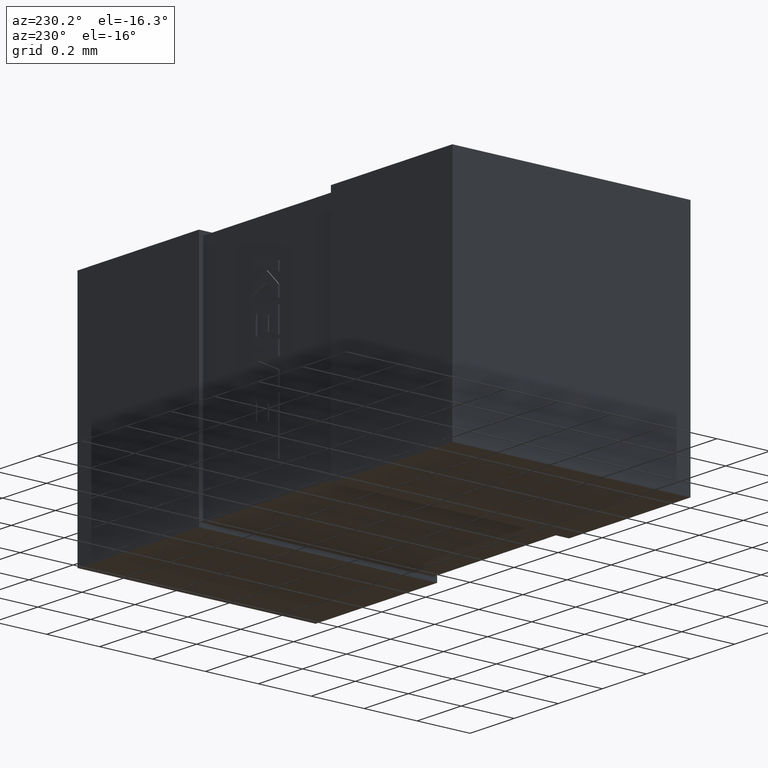
[diagram: clean part render]
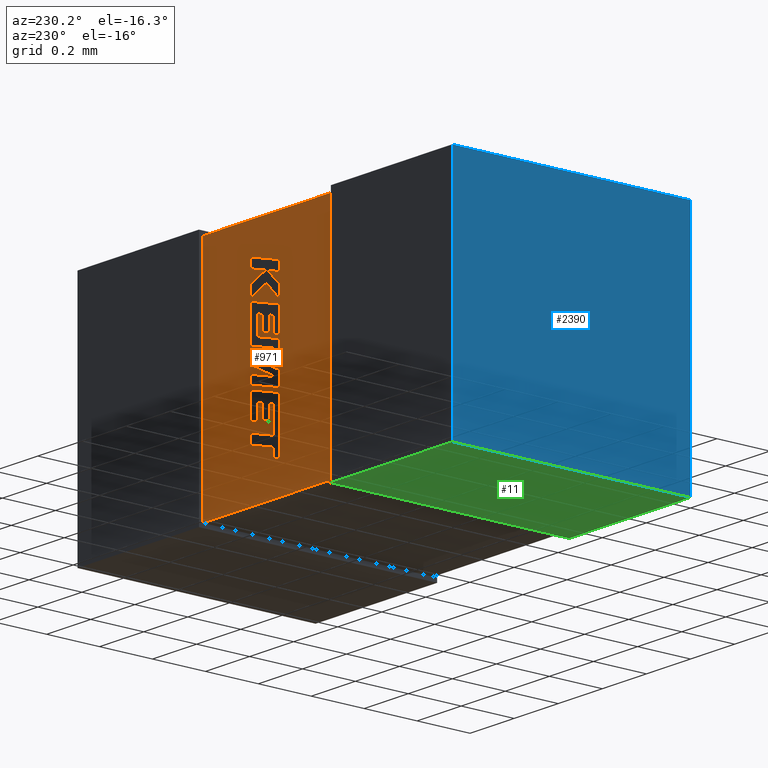
[diagram: same view with three faces highlighted in distinct colors, each labeled with its STEP entity id]
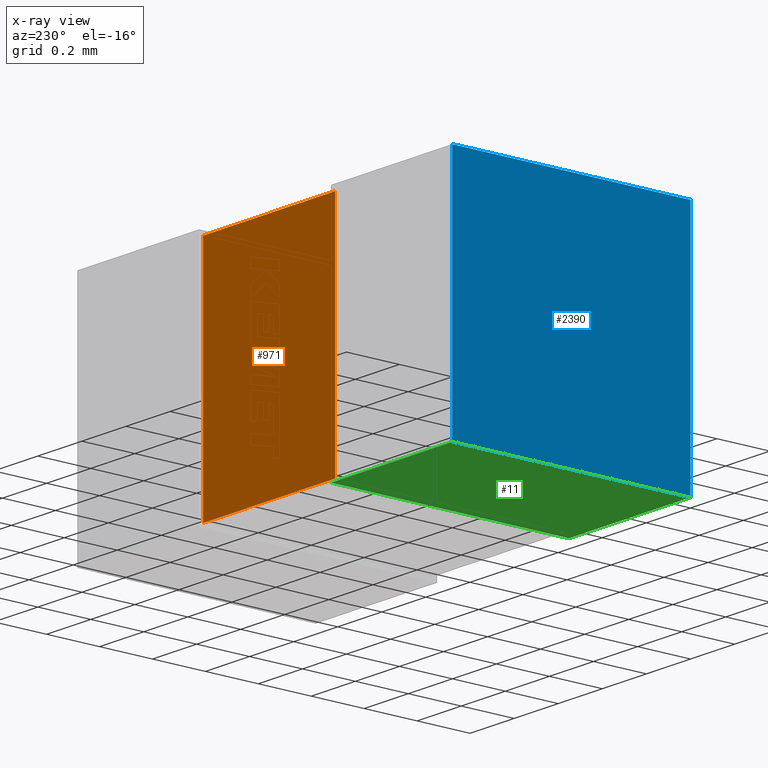
[diagram: x-ray of the same camera — body ghosted, the three highlighted faces saturated]
A machine part, auxiliary view with three faces highlighted in distinct colors.
The next image is the same camera in x-ray (body ghosted, the three faces saturated) — at least one of them is partly hidden behind the body in this view.
Their STEP definitions:

[orange] entity #971 — the highlighted planar face has unit normal (0, -1, 0).
#123 = CARTESIAN_POINT ( 'NONE',  ( 0.5500000000000002700, 0.8844830999999999700, -0.9000000000000002400 ) ) ;
#139 = EDGE_CURVE ( 'NONE', #170, #1291, #2241, .T. ) ;
#170 = VERTEX_POINT ( 'NONE', #1509 ) ;
#248 = LINE ( 'NONE', #783, #2033 ) ;
#392 = DIRECTION ( 'NONE',  ( -0.0000000000000000000, -0.0000000000000000000, 1.000000000000000000 ) ) ;
#425 = FACE_OUTER_BOUND ( 'NONE', #1767, .T. ) ;
#461 = CARTESIAN_POINT ( 'NONE',  ( 1.149000000000000000, 0.8844830999999999700, -0.8844831000000001900 ) ) ;
#529 = DIRECTION ( 'NONE',  ( 1.000000000000000000, 0.0000000000000000000, 0.0000000000000000000 ) ) ;
#656 = DIRECTION ( 'NONE',  ( -0.0000000000000000000, -0.0000000000000000000, -1.000000000000000000 ) ) ;
#679 = VECTOR ( 'NONE', #392, 1000.000000000000000 ) ;
#721 = LINE ( 'NONE', #461, #1835 ) ;
#764 = CARTESIAN_POINT ( 'NONE',  ( 0.5510000000000064800, 0.8844831000000000800, -0.01551689999999990600 ) ) ;
#783 = CARTESIAN_POINT ( 'NONE',  ( 0.5500000000000001600, 0.8844830999999999700, -0.01551690000000001400 ) ) ;
#971 = ADVANCED_FACE ( 'NONE', ( #425 ), #1269, .F. ) ;
#1051 = ORIENTED_EDGE ( 'NONE', *, *, #2040, .T. ) ;
#1113 = ORIENTED_EDGE ( 'NONE', *, *, #139, .F. ) ;
#1264 = AXIS2_PLACEMENT_3D ( 'NONE', #123, #1478, #1851 ) ;
#1269 = PLANE ( 'NONE',  #1264 ) ;
#1291 = VERTEX_POINT ( 'NONE', #1840 ) ;
#1365 = DIRECTION ( 'NONE',  ( 1.000000000000000000, 0.0000000000000000000, 0.0000000000000000000 ) ) ;
#1388 = ORIENTED_EDGE ( 'NONE', *, *, #2324, .T. ) ;
#1478 = DIRECTION ( 'NONE',  ( 0.0000000000000000000, -1.000000000000000000, 0.0000000000000000000 ) ) ;
#1509 = CARTESIAN_POINT ( 'NONE',  ( 0.5510000000000064800, 0.8844831000000000800, -0.8844830999999997400 ) ) ;
#1525 = EDGE_CURVE ( 'NONE', #2047, #1291, #721, .T. ) ;
#1720 = VECTOR ( 'NONE', #529, 1000.000000000000000 ) ;
#1767 = EDGE_LOOP ( 'NONE', ( #1983, #1113, #1051, #1388 ) ) ;
#1835 = VECTOR ( 'NONE', #656, 1000.000000000000000 ) ;
#1840 = CARTESIAN_POINT ( 'NONE',  ( 1.149000000000000000, 0.8844830999999999700, -0.8844831000000001900 ) ) ;
#1851 = DIRECTION ( 'NONE',  ( 0.0000000000000000000, -0.0000000000000000000, -1.000000000000000000 ) ) ;
#1876 = LINE ( 'NONE', #2375, #679 ) ;
#1983 = ORIENTED_EDGE ( 'NONE', *, *, #1525, .T. ) ;
#2033 = VECTOR ( 'NONE', #1365, 1000.000000000000000 ) ;
#2040 = EDGE_CURVE ( 'NONE', #170, #2269, #1876, .T. ) ;
#2047 = VERTEX_POINT ( 'NONE', #2441 ) ;
#2089 = CARTESIAN_POINT ( 'NONE',  ( 0.5500000000000001600, 0.8844830999999999700, -0.8844831000000001900 ) ) ;
#2241 = LINE ( 'NONE', #2089, #1720 ) ;
#2269 = VERTEX_POINT ( 'NONE', #764 ) ;
#2324 = EDGE_CURVE ( 'NONE', #2269, #2047, #248, .T. ) ;
#2375 = CARTESIAN_POINT ( 'NONE',  ( 0.5510000000000064800, 0.8844831000000000800, -0.01551689999999990600 ) ) ;
#2441 = CARTESIAN_POINT ( 'NONE',  ( 1.149000000000000000, 0.8844830999999999700, -0.01551690000000001400 ) ) ;

[blue] entity #2390 — the highlighted planar face has unit normal (1, -0, 0).
#204 = VERTEX_POINT ( 'NONE', #521 ) ;
#265 = DIRECTION ( 'NONE',  ( -0.0000000000000000000, -0.0000000000000000000, 1.000000000000000000 ) ) ;
#368 = EDGE_LOOP ( 'NONE', ( #905, #1192, #1980, #1946 ) ) ;
#457 = LINE ( 'NONE', #2191, #2451 ) ;
#521 = CARTESIAN_POINT ( 'NONE',  ( 0.0000000000000000000, 0.9000000000000000200, -0.9000000000000000200 ) ) ;
#600 = DIRECTION ( 'NONE',  ( -0.0000000000000000000, -0.0000000000000000000, 1.000000000000000000 ) ) ;
#610 = CARTESIAN_POINT ( 'NONE',  ( 0.0000000000000000000, 0.9000000000000000200, 0.0000000000000000000 ) ) ;
#804 = DIRECTION ( 'NONE',  ( 1.000000000000000000, -0.0000000000000000000, 0.0000000000000000000 ) ) ;
#809 = CARTESIAN_POINT ( 'NONE',  ( 0.0000000000000000000, 0.0000000000000000000, -0.9000000000000000200 ) ) ;
#905 = ORIENTED_EDGE ( 'NONE', *, *, #2202, .T. ) ;
#1033 = LINE ( 'NONE', #1065, #1267 ) ;
#1039 = CARTESIAN_POINT ( 'NONE',  ( 0.0000000000000000000, 0.9000000000000000200, 0.0000000000000000000 ) ) ;
#1041 = EDGE_CURVE ( 'NONE', #204, #2039, #1033, .T. ) ;
#1065 = CARTESIAN_POINT ( 'NONE',  ( 0.0000000000000000000, 0.9000000000000000200, -0.9000000000000000200 ) ) ;
#1141 = EDGE_CURVE ( 'NONE', #2010, #1438, #457, .T. ) ;
#1158 = CARTESIAN_POINT ( 'NONE',  ( 0.0000000000000000000, 0.0000000000000000000, 0.0000000000000000000 ) ) ;
#1192 = ORIENTED_EDGE ( 'NONE', *, *, #1141, .F. ) ;
#1203 = DIRECTION ( 'NONE',  ( -0.0000000000000000000, -1.000000000000000000, -0.0000000000000000000 ) ) ;
#1267 = VECTOR ( 'NONE', #1203, 1000.000000000000000 ) ;
#1392 = DIRECTION ( 'NONE',  ( 0.0000000000000000000, 0.0000000000000000000, -1.000000000000000000 ) ) ;
#1396 = PLANE ( 'NONE',  #1781 ) ;
#1431 = EDGE_CURVE ( 'NONE', #204, #2010, #2166, .T. ) ;
#1438 = VERTEX_POINT ( 'NONE', #1985 ) ;
#1490 = VECTOR ( 'NONE', #600, 1000.000000000000000 ) ;
#1545 = CARTESIAN_POINT ( 'NONE',  ( 0.0000000000000000000, 0.9000000000000000200, 0.0000000000000000000 ) ) ;
#1746 = VECTOR ( 'NONE', #265, 1000.000000000000000 ) ;
#1781 = AXIS2_PLACEMENT_3D ( 'NONE', #610, #804, #1392 ) ;
#1946 = ORIENTED_EDGE ( 'NONE', *, *, #1041, .T. ) ;
#1980 = ORIENTED_EDGE ( 'NONE', *, *, #1431, .F. ) ;
#1985 = CARTESIAN_POINT ( 'NONE',  ( 0.0000000000000000000, 0.0000000000000000000, 0.0000000000000000000 ) ) ;
#1999 = LINE ( 'NONE', #1158, #1490 ) ;
#2010 = VERTEX_POINT ( 'NONE', #1545 ) ;
#2039 = VERTEX_POINT ( 'NONE', #809 ) ;
#2148 = FACE_OUTER_BOUND ( 'NONE', #368, .T. ) ;
#2166 = LINE ( 'NONE', #1039, #1746 ) ;
#2191 = CARTESIAN_POINT ( 'NONE',  ( 0.0000000000000000000, 0.9000000000000000200, 0.0000000000000000000 ) ) ;
#2202 = EDGE_CURVE ( 'NONE', #2039, #1438, #1999, .T. ) ;
#2389 = DIRECTION ( 'NONE',  ( -0.0000000000000000000, -1.000000000000000000, -0.0000000000000000000 ) ) ;
#2390 = ADVANCED_FACE ( 'NONE', ( #2148 ), #1396, .F. ) ;
#2451 = VECTOR ( 'NONE', #2389, 1000.000000000000000 ) ;

[green] entity #11 — the highlighted planar face has unit normal (0, -0, 1).
#11 = ADVANCED_FACE ( 'NONE', ( #826 ), #312, .F. ) ;
#29 = VECTOR ( 'NONE', #296, 1000.000000000000000 ) ;
#36 = VECTOR ( 'NONE', #1997, 1000.000000000000000 ) ;
#109 = CARTESIAN_POINT ( 'NONE',  ( 0.5510000000000064800, 3.670258186266575500E-015, -0.9000000000000003600 ) ) ;
#141 = ORIENTED_EDGE ( 'NONE', *, *, #1041, .F. ) ;
#152 = DIRECTION ( 'NONE',  ( 1.000000000000000000, 0.0000000000000000000, -1.275531967630005200E-016 ) ) ;
#204 = VERTEX_POINT ( 'NONE', #521 ) ;
#214 = EDGE_CURVE ( 'NONE', #957, #739, #1215, .T. ) ;
#296 = DIRECTION ( 'NONE',  ( -1.000000000000000000, -0.0000000000000000000, 1.275531967630005200E-016 ) ) ;
#312 = PLANE ( 'NONE',  #1796 ) ;
#314 = DIRECTION ( 'NONE',  ( -0.0000000000000000000, 1.000000000000000000, 2.409338161078908500E-016 ) ) ;
#391 = LINE ( 'NONE', #1800, #36 ) ;
#508 = CARTESIAN_POINT ( 'NONE',  ( 0.0000000000000000000, 0.0000000000000000000, -0.9000000000000000200 ) ) ;
#521 = CARTESIAN_POINT ( 'NONE',  ( 0.0000000000000000000, 0.9000000000000000200, -0.9000000000000000200 ) ) ;
#544 = LINE ( 'NONE', #508, #29 ) ;
#705 = VECTOR ( 'NONE', #314, 1000.000000000000000 ) ;
#726 = CARTESIAN_POINT ( 'NONE',  ( 0.5510000000000064800, 0.9000000000000001300, -0.9000000000000002400 ) ) ;
#739 = VERTEX_POINT ( 'NONE', #1780 ) ;
#809 = CARTESIAN_POINT ( 'NONE',  ( 0.0000000000000000000, 0.0000000000000000000, -0.9000000000000000200 ) ) ;
#826 = FACE_OUTER_BOUND ( 'NONE', #904, .T. ) ;
#865 = EDGE_CURVE ( 'NONE', #739, #204, #391, .T. ) ;
#904 = EDGE_LOOP ( 'NONE', ( #1107, #1526, #1321, #141 ) ) ;
#957 = VERTEX_POINT ( 'NONE', #109 ) ;
#1033 = LINE ( 'NONE', #1065, #1267 ) ;
#1041 = EDGE_CURVE ( 'NONE', #204, #2039, #1033, .T. ) ;
#1065 = CARTESIAN_POINT ( 'NONE',  ( 0.0000000000000000000, 0.9000000000000000200, -0.9000000000000000200 ) ) ;
#1107 = ORIENTED_EDGE ( 'NONE', *, *, #865, .F. ) ;
#1203 = DIRECTION ( 'NONE',  ( -0.0000000000000000000, -1.000000000000000000, -0.0000000000000000000 ) ) ;
#1215 = LINE ( 'NONE', #726, #705 ) ;
#1267 = VECTOR ( 'NONE', #1203, 1000.000000000000000 ) ;
#1273 = CARTESIAN_POINT ( 'NONE',  ( 0.0000000000000000000, 0.9000000000000000200, -0.9000000000000000200 ) ) ;
#1321 = ORIENTED_EDGE ( 'NONE', *, *, #1861, .T. ) ;
#1497 = DIRECTION ( 'NONE',  ( 1.275531967630005200E-016, -0.0000000000000000000, 1.000000000000000000 ) ) ;
#1526 = ORIENTED_EDGE ( 'NONE', *, *, #214, .F. ) ;
#1780 = CARTESIAN_POINT ( 'NONE',  ( 0.5510000000000064800, 0.9000000000000001300, -0.9000000000000002400 ) ) ;
#1796 = AXIS2_PLACEMENT_3D ( 'NONE', #1273, #1497, #152 ) ;
#1800 = CARTESIAN_POINT ( 'NONE',  ( 0.0000000000000000000, 0.9000000000000000200, -0.9000000000000000200 ) ) ;
#1861 = EDGE_CURVE ( 'NONE', #957, #2039, #544, .T. ) ;
#1997 = DIRECTION ( 'NONE',  ( -1.000000000000000000, -0.0000000000000000000, 1.275531967630005200E-016 ) ) ;
#2039 = VERTEX_POINT ( 'NONE', #809 ) ;